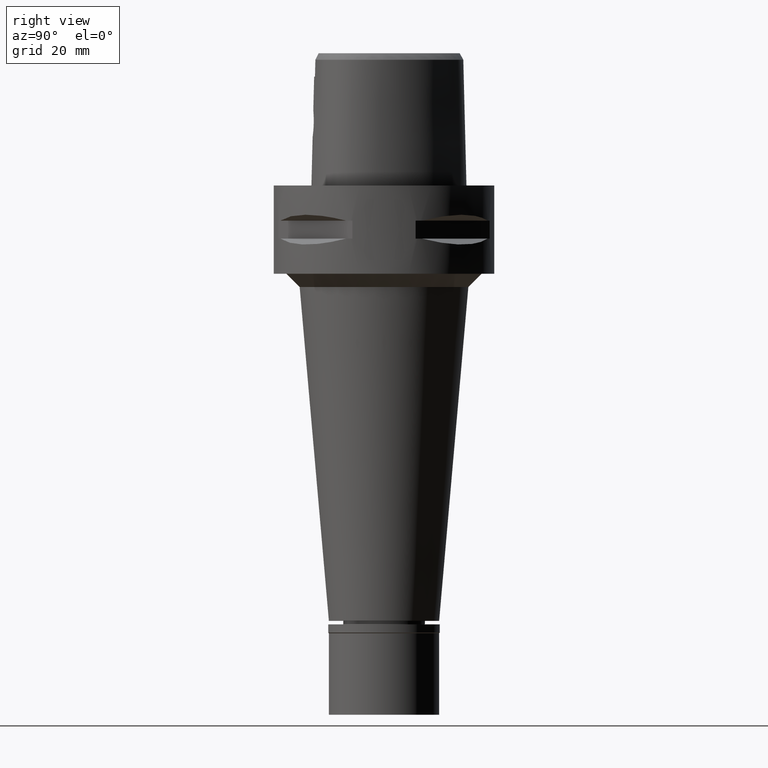
[diagram: clean part render]
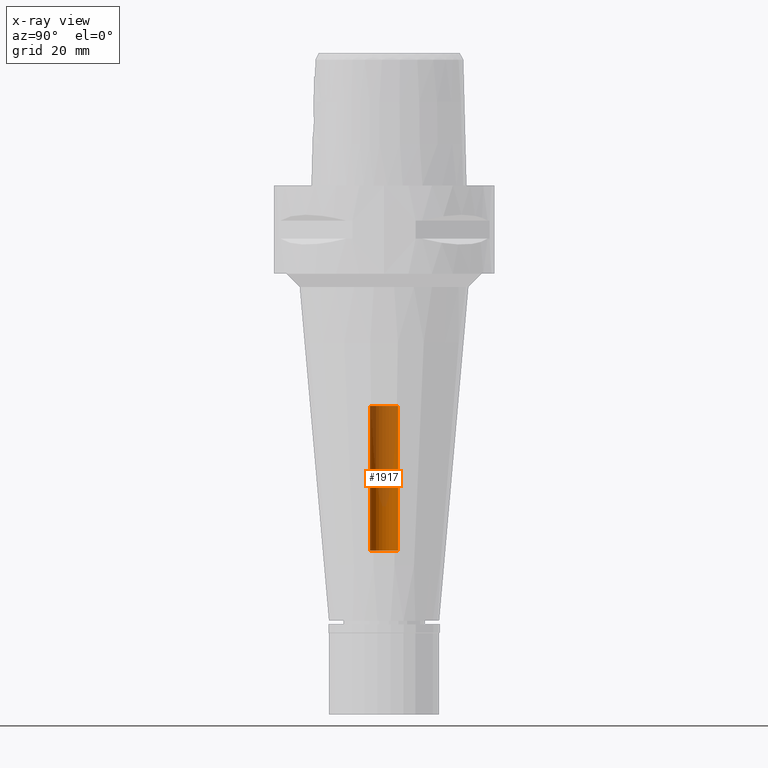
[diagram: x-ray — body ghosted, one internal face saturated and labeled with its STEP entity id]
A machine part, right view, then the same camera in x-ray: the body is ghosted and one INTERNAL B-rep face — a face not visible from any outside direction — is saturated and labeled: STEP entity #1917.
In plain terms, the highlighted cylindrical surface (edge-blend (fillet) strip) has radius 3.2 mm, axis along (0, 0, -1).
Its self-contained STEP definition (entity closure, byte-faithful):
#135 = VERTEX_POINT ( 'NONE', #4715 ) ;
#600 = DIRECTION ( 'NONE',  ( 0.0000000000000000000, 0.0000000000000000000, -1.000000000000000000 ) ) ;
#656 = CARTESIAN_POINT ( 'NONE',  ( 0.0000000000000000000, -3.200000000000000178, -82.79999999999999716 ) ) ;
#799 = VECTOR ( 'NONE', #2494, 1000.000000000000000 ) ;
#862 = AXIS2_PLACEMENT_3D ( 'NONE', #1107, #1058, #3041 ) ;
#1058 = DIRECTION ( 'NONE',  ( 0.0000000000000000000, 0.0000000000000000000, 1.000000000000000000 ) ) ;
#1107 = CARTESIAN_POINT ( 'NONE',  ( 0.0000000000000000000, 1.294329202019000047E-14, -50.00000000000000000 ) ) ;
#1287 = CARTESIAN_POINT ( 'NONE',  ( 0.0000000000000000000, 3.200000000000000178, -50.00000000000000000 ) ) ;
#1573 = DIRECTION ( 'NONE',  ( 0.0000000000000000000, 0.0000000000000000000, -1.000000000000000000 ) ) ;
#1781 = DIRECTION ( 'NONE',  ( 0.0000000000000000000, 0.0000000000000000000, 1.000000000000000000 ) ) ;
#1893 = FACE_OUTER_BOUND ( 'NONE', #3203, .T. ) ;
#1917 = ADVANCED_FACE ( 'NONE', ( #1893 ), #3423, .F. ) ;
#1920 = AXIS2_PLACEMENT_3D ( 'NONE', #4383, #600, #4093 ) ;
#2119 = ORIENTED_EDGE ( 'NONE', *, *, #4445, .T. ) ;
#2168 = LINE ( 'NONE', #4080, #799 ) ;
#2259 = VERTEX_POINT ( 'NONE', #1287 ) ;
#2494 = DIRECTION ( 'NONE',  ( 0.0000000000000000000, 0.0000000000000000000, 1.000000000000000000 ) ) ;
#2525 = EDGE_CURVE ( 'NONE', #2259, #3550, #2929, .T. ) ;
#2682 = CARTESIAN_POINT ( 'NONE',  ( 0.0000000000000000000, 1.294329202019000047E-14, 5.689999999999999503 ) ) ;
#2929 = CIRCLE ( 'NONE', #862, 3.200000000000000178 ) ;
#3041 = DIRECTION ( 'NONE',  ( 0.0000000000000000000, 1.000000000000000000, 0.0000000000000000000 ) ) ;
#3171 = AXIS2_PLACEMENT_3D ( 'NONE', #2682, #1573, #4623 ) ;
#3203 = EDGE_LOOP ( 'NONE', ( #3474, #4524, #2119, #4738 ) ) ;
#3423 = CYLINDRICAL_SURFACE ( 'NONE', #3171, 3.200000000000000178 ) ;
#3474 = ORIENTED_EDGE ( 'NONE', *, *, #2525, .T. ) ;
#3543 = EDGE_CURVE ( 'NONE', #3725, #3550, #4806, .T. ) ;
#3550 = VERTEX_POINT ( 'NONE', #4019 ) ;
#3662 = CARTESIAN_POINT ( 'NONE',  ( 0.0000000000000000000, -3.200000000000000178, -82.79999999999999716 ) ) ;
#3725 = VERTEX_POINT ( 'NONE', #656 ) ;
#4019 = CARTESIAN_POINT ( 'NONE',  ( 0.0000000000000000000, -3.200000000000000178, -50.00000000000000000 ) ) ;
#4080 = CARTESIAN_POINT ( 'NONE',  ( 0.0000000000000000000, 3.200000000000000178, -82.79999999999999716 ) ) ;
#4093 = DIRECTION ( 'NONE',  ( 0.0000000000000000000, -1.000000000000000000, 0.0000000000000000000 ) ) ;
#4322 = CIRCLE ( 'NONE', #1920, 3.200000000000000178 ) ;
#4383 = CARTESIAN_POINT ( 'NONE',  ( 0.0000000000000000000, 1.294329202019000047E-14, -82.79999999999999716 ) ) ;
#4445 = EDGE_CURVE ( 'NONE', #3725, #135, #4322, .T. ) ;
#4524 = ORIENTED_EDGE ( 'NONE', *, *, #3543, .F. ) ;
#4623 = DIRECTION ( 'NONE',  ( 0.0000000000000000000, -1.000000000000000000, 0.0000000000000000000 ) ) ;
#4715 = CARTESIAN_POINT ( 'NONE',  ( 0.0000000000000000000, 3.200000000000000178, -82.79999999999999716 ) ) ;
#4738 = ORIENTED_EDGE ( 'NONE', *, *, #4759, .T. ) ;
#4759 = EDGE_CURVE ( 'NONE', #135, #2259, #2168, .T. ) ;
#4806 = LINE ( 'NONE', #3662, #4946 ) ;
#4946 = VECTOR ( 'NONE', #1781, 1000.000000000000000 ) ;